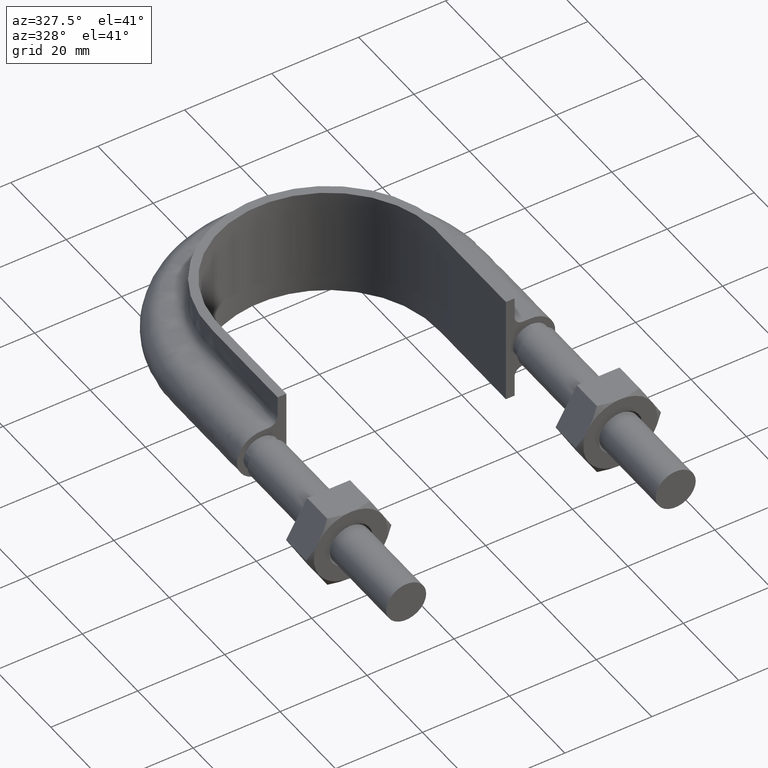
[diagram: clean part render]
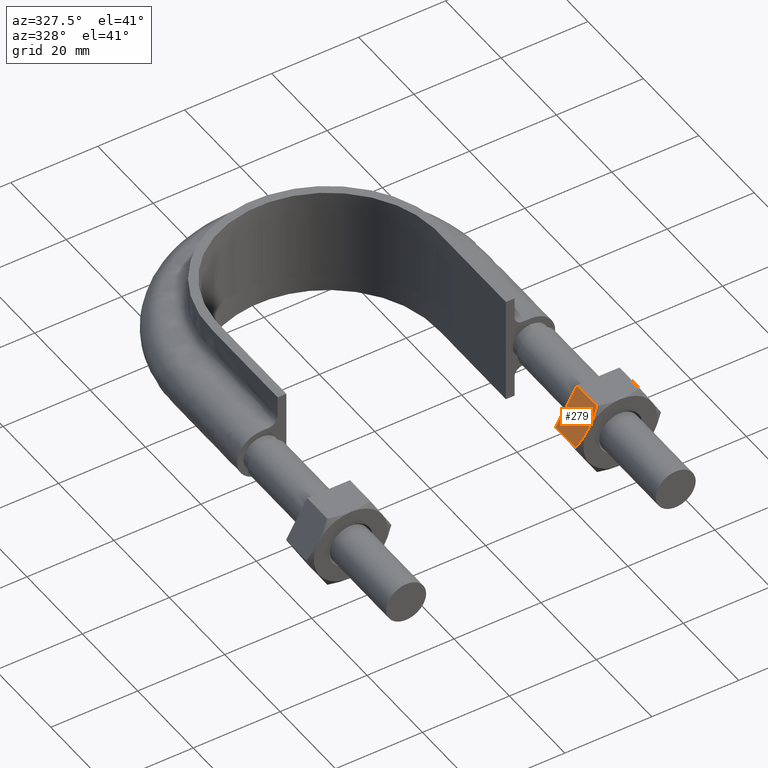
[diagram: same view with one face highlighted and labeled with its STEP entity id]
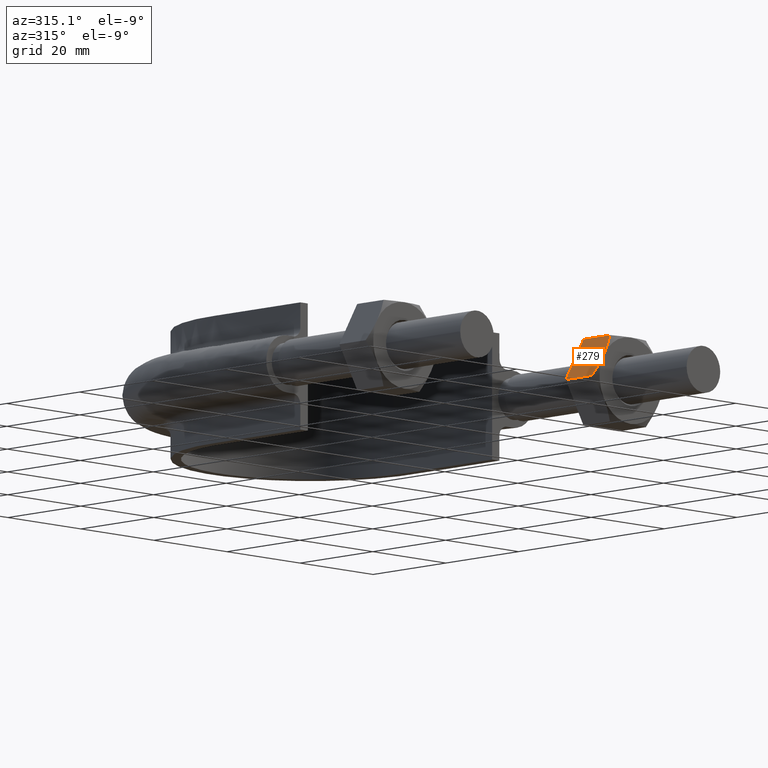
[diagram: same view with one face highlighted and labeled with its STEP entity id]
A machine part, auxiliary view. The second image highlights one B-rep face of the part: STEP entity #279.
A second angle (auxiliary view) of the same face is appended — the face is thin or edge-on in the first view.
In plain terms, the highlighted planar face has unit normal (0.866, -0, -0.5).
Its self-contained STEP definition (entity closure, byte-faithful):
#279 = ADVANCED_FACE( '', ( #429 ), #430, .F. );
#429 = FACE_OUTER_BOUND( '', #1272, .T. );
#430 = PLANE( '', #1273 );
#1272 = EDGE_LOOP( '', ( #1736, #1737, #1738, #1739, #1740 ) );
#1273 = AXIS2_PLACEMENT_3D( '', #1741, #1742, #1743 );
#1736 = ORIENTED_EDGE( '', *, *, #1968, .F. );
#1737 = ORIENTED_EDGE( '', *, *, #1973, .F. );
#1738 = ORIENTED_EDGE( '', *, *, #1967, .F. );
#1739 = ORIENTED_EDGE( '', *, *, #1964, .F. );
#1740 = ORIENTED_EDGE( '', *, *, #1974, .F. );
#1741 = CARTESIAN_POINT( '', ( 21.1850454237764, 28.0000000000000, 5.07157250223544E-015 ) );
#1742 = DIRECTION( '', ( 0.866025403784439, -1.42085446679231E-017, -0.500000000000000 ) );
#1743 = DIRECTION( '', ( -0.500000000000000, 2.20311349498021E-016, -0.866025403784439 ) );
#1964 = EDGE_CURVE( '', #2198, #2180, #2200, .T. );
#1967 = EDGE_CURVE( '', #2180, #2201, #2205, .F. );
#1968 = EDGE_CURVE( '', #2158, #2206, #2207, .T. );
#1973 = EDGE_CURVE( '', #2201, #2158, #2213, .T. );
#1974 = EDGE_CURVE( '', #2206, #2198, #2214, .T. );
#2158 = VERTEX_POINT( '', #2727 );
#2180 = VERTEX_POINT( '', #2764 );
#2198 = VERTEX_POINT( '', #2786 );
#2200 = LINE( '', #2788, #2789 );
#2201 = VERTEX_POINT( '', #2790 );
#2205 = LINE( '', #2795, #2796 );
#2206 = VERTEX_POINT( '', #2797 );
#2207 = B_SPLINE_CURVE_WITH_KNOTS( '', 3, ( #2798, #2799, #2800, #2801, #2802, #2803, #2804, #2805 ), .UNSPECIFIED., .F., .F., ( 4, 2, 2, 4 ), ( 0.00493529902949373, 0.00616408349151779, 0.00739286795354186, 0.00985043687758998 ), .UNSPECIFIED. );
#2213 = B_SPLINE_CURVE_WITH_KNOTS( '', 3, ( #2822, #2823, #2824, #2825, #2826, #2827 ), .UNSPECIFIED., .F., .F., ( 4, 2, 4 ), ( 7.17194508351968E-007, 0.00246800811200104, 0.00493529902949373 ), .UNSPECIFIED. );
#2214 = LINE( '', #2828, #2829 );
#2727 = CARTESIAN_POINT( '', ( 23.6387840678323, 20.0000000000000, 4.25000000000000 ) );
#2764 = CARTESIAN_POINT( '', ( 26.0775337474837, 28.0000000000000, 8.47403835209862 ) );
#2786 = CARTESIAN_POINT( '', ( 21.2000343881808, 28.0000000000000, 0.0259616479013837 ) );
#2788 = CARTESIAN_POINT( '', ( 21.1887840678323, 28.0000000000000, 0.00647552145625476 ) );
#2789 = VECTOR( '', #3083, 1000.00000000000 );
#2790 = CARTESIAN_POINT( '', ( 26.0775337474837, 20.7505553499465, 8.47403835209862 ) );
#2795 = CARTESIAN_POINT( '', ( 26.0775337474837, 28.0000000000000, 8.47403835209862 ) );
#2796 = VECTOR( '', #3088, 1000.00000000000 );
#2797 = CARTESIAN_POINT( '', ( 21.2000343881808, 20.7505553499465, 0.0259616479013825 ) );
#2798 = CARTESIAN_POINT( '', ( 23.6387840678323, 20.0000000000000, 4.25000000000000 ) );
#2799 = CARTESIAN_POINT( '', ( 23.4319292539568, 20.0000000000000, 3.89171695257749 ) );
#2800 = CARTESIAN_POINT( '', ( 23.2240406570310, 20.0177112141220, 3.53164334038784 ) );
#2801 = CARTESIAN_POINT( '', ( 22.8127845670035, 20.0863020976798, 2.81932689753803 ) );
#2802 = CARTESIAN_POINT( '', ( 22.6085235088339, 20.1371114863339, 2.46553636678045 ) );
#2803 = CARTESIAN_POINT( '', ( 21.9993502254419, 20.3331491064655, 1.41041728933202 ) );
#2804 = CARTESIAN_POINT( '', ( 21.5980345022286, 20.5218250443849, 0.715318066850386 ) );
#2805 = CARTESIAN_POINT( '', ( 21.2000343881808, 20.7505553499465, 0.0259616479013815 ) );
#2822 = CARTESIAN_POINT( '', ( 26.0775337474837, 20.7505553499465, 8.47403835209862 ) );
#2823 = CARTESIAN_POINT( '', ( 25.6784819807117, 20.5212206605155, 7.78286041719930 ) );
#2824 = CARTESIAN_POINT( '', ( 25.2765478875189, 20.3324529479805, 7.08669014649529 ) );
#2825 = CARTESIAN_POINT( '', ( 24.4644024261503, 20.0714150925759, 5.68001294426847 ) );
#2826 = CARTESIAN_POINT( '', ( 24.0541303057509, 20.0000000000000, 4.96940078680768 ) );
#2827 = CARTESIAN_POINT( '', ( 23.6387840678323, 20.0000000000000, 4.25000000000000 ) );
#2828 = CARTESIAN_POINT( '', ( 21.2000343881808, 28.0000000000000, 0.0259616479013857 ) );
#2829 = VECTOR( '', #3093, 1000.00000000000 );
#3083 = DIRECTION( '', ( 0.500000000000000, -2.20311349498021E-016, 0.866025403784439 ) );
#3088 = DIRECTION( '', ( 1.22460635382238E-016, 1.00000000000000, 1.83690953073357E-016 ) );
#3093 = DIRECTION( '', ( 1.22460635382238E-016, 1.00000000000000, 1.83690953073357E-016 ) );